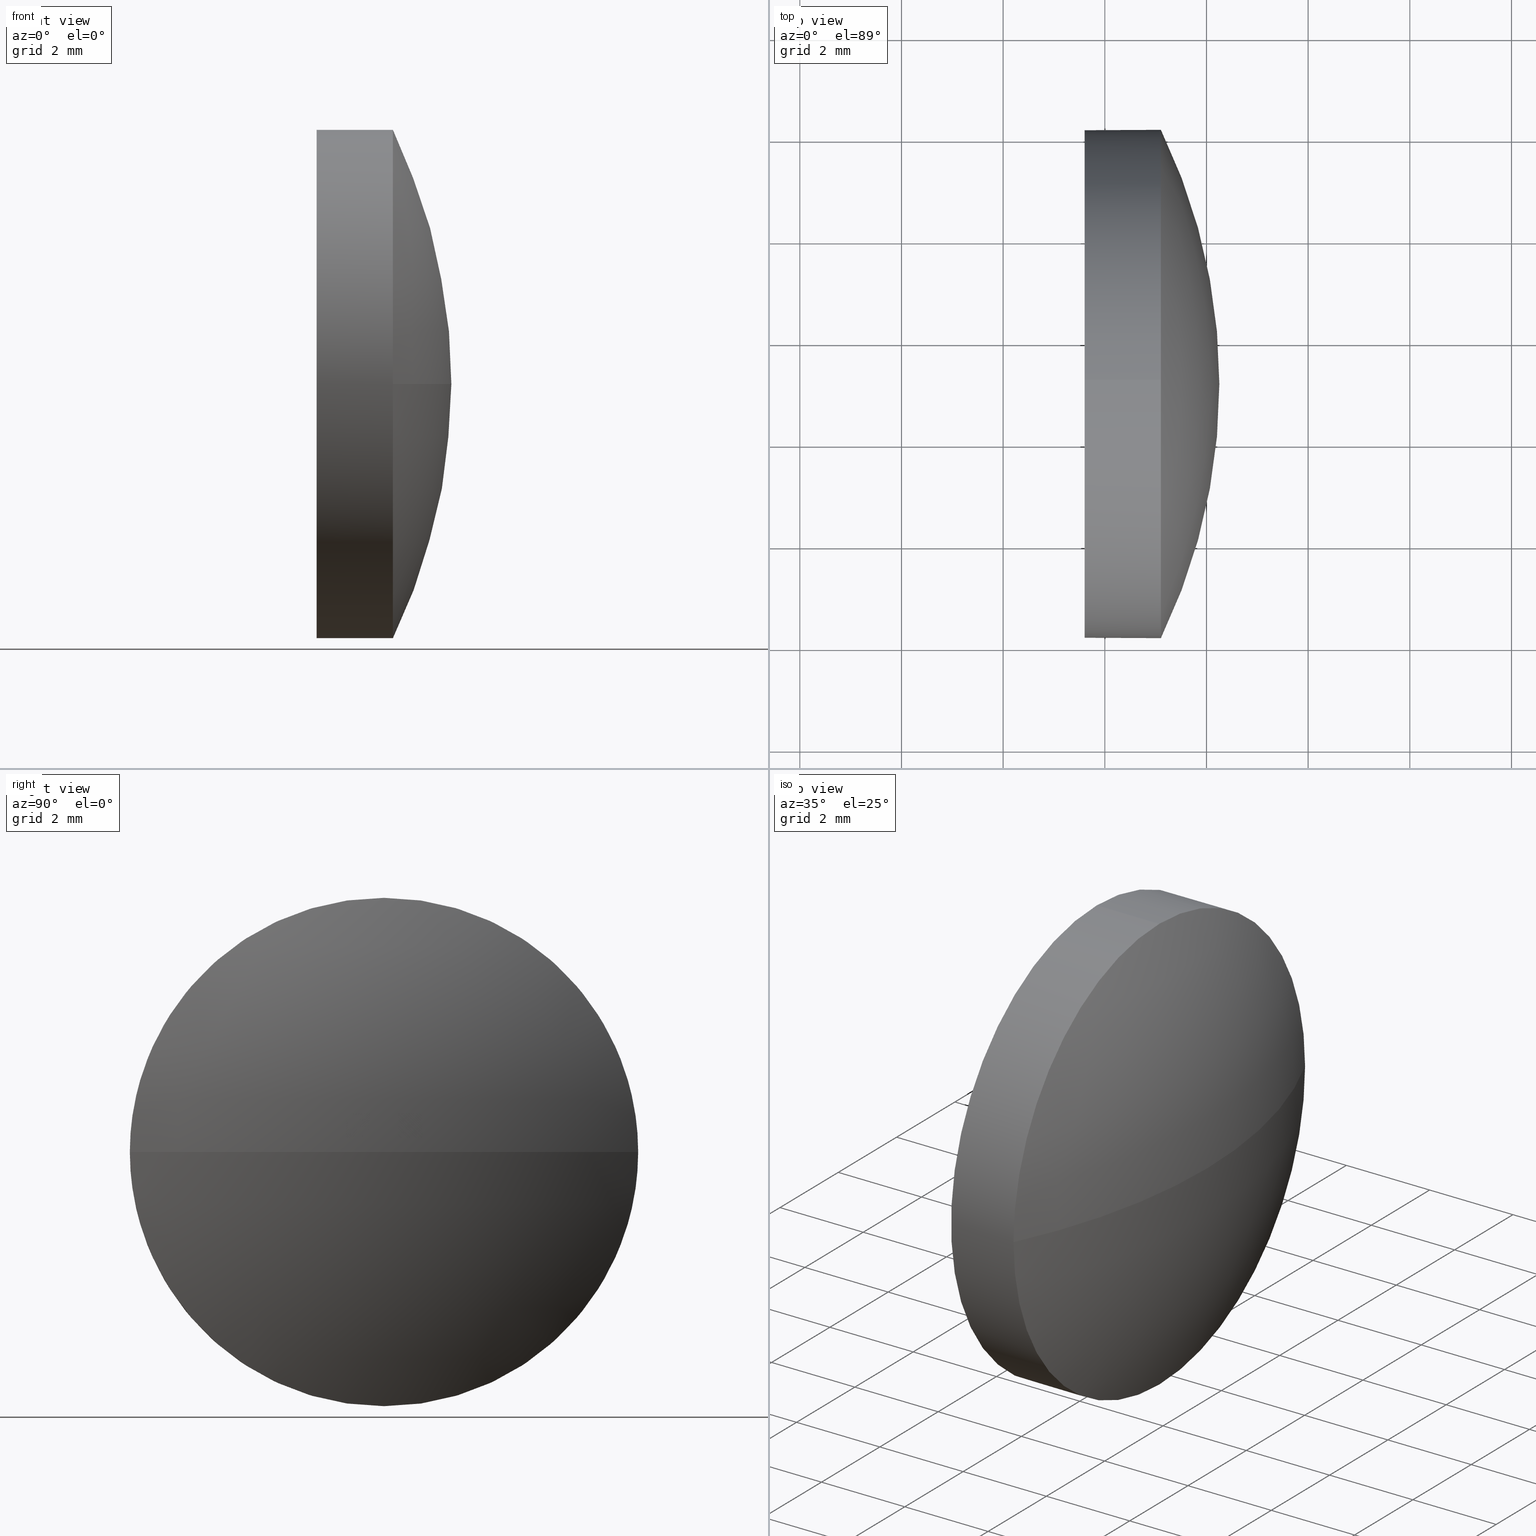
[diagram: canonical four-view strip — front | top / right | iso, engineering-drawing reading convention]
A machine part, canonical four-view strip (front | top / right | iso — engineering-drawing reading convention). The complete STEP part file that produces these views, byte-faithful:
ISO-10303-21;
HEADER;
FILE_DESCRIPTION (( 'STEP AP214' ),
    '1' );
FILE_NAME ('100360.STEP',
    '2019-06-04T01:48:17',
    ( '' ),
    ( '' ),
    'SwSTEP 2.0',
    'SolidWorks 2016',
    '' );
FILE_SCHEMA (( 'AUTOMOTIVE_DESIGN' ));
ENDSEC;

DATA;
#1 = AXIS2_PLACEMENT_3D ( 'NONE', #26, #68, #40 ) ;
#2 = CYLINDRICAL_SURFACE ( 'NONE', #10, 5.000000000000004400 ) ;
#3 = CARTESIAN_POINT ( 'NONE',  ( 486.4612023547895200, 77.15318376785940300, 0.0000000000000000000 ) ) ;
#4 = VERTEX_POINT ( 'NONE', #175 ) ;
#5 = DIRECTION ( 'NONE',  ( -1.000000000000000000, -0.0000000000000000000, -0.0000000000000000000 ) ) ;
#6 = FILL_AREA_STYLE ('',( #125 ) ) ;
#7 = SURFACE_STYLE_USAGE ( .BOTH. , #101 ) ;
#8 = ORIENTED_EDGE ( 'NONE', *, *, #31, .F. ) ;
#9 =( NAMED_UNIT ( * ) SI_UNIT ( $, .STERADIAN. ) SOLID_ANGLE_UNIT ( ) );
#10 = AXIS2_PLACEMENT_3D ( 'NONE', #3, #98, #62 ) ;
#11 = APPLICATION_PROTOCOL_DEFINITION ( 'draft international standard', 'automotive_design', 1998, #177 ) ;
#12 = FACE_OUTER_BOUND ( 'NONE', #78, .T. ) ;
#13 = EDGE_LOOP ( 'NONE', ( #176, #135, #122, #21 ) ) ;
#14 = AXIS2_PLACEMENT_3D ( 'NONE', #152, #150, #165 ) ;
#15 = PRESENTATION_STYLE_ASSIGNMENT (( #61 ) ) ;
#16 = AXIS2_PLACEMENT_3D ( 'NONE', #66, #20, #162 ) ;
#17 = PRESENTATION_LAYER_ASSIGNMENT (  '', '', ( #71 ) ) ;
#18 = FACE_OUTER_BOUND ( 'NONE', #91, .T. ) ;
#19 = DIRECTION ( 'NONE',  ( 0.0000000000000000000, 0.0000000000000000000, 1.000000000000000000 ) ) ;
#20 = DIRECTION ( 'NONE',  ( -1.000000000000000000, -0.0000000000000000000, -0.0000000000000000000 ) ) ;
#21 = ORIENTED_EDGE ( 'NONE', *, *, #53, .F. ) ;
#22 = CARTESIAN_POINT ( 'NONE',  ( 486.4612023547895200, 77.15318376785940300, 5.000000000000004400 ) ) ;
#23 = CIRCLE ( 'NONE', #185, 11.44456521739140000 ) ;
#24 =( LENGTH_UNIT ( ) NAMED_UNIT ( * ) SI_UNIT ( .MILLI., .METRE. ) );
#25 = PRODUCT_DEFINITION_FORMATION_WITH_SPECIFIED_SOURCE ( '�κ�', '', #157, .NOT_KNOWN. ) ;
#26 = CARTESIAN_POINT ( 'NONE',  ( 478.8088668298425400, 77.15318376785940300, 0.0000000000000000000 ) ) ;
#27 = ORIENTED_EDGE ( 'NONE', *, *, #31, .T. ) ;
#28 =( GEOMETRIC_REPRESENTATION_CONTEXT ( 3 ) GLOBAL_UNCERTAINTY_ASSIGNED_CONTEXT ( ( #88 ) ) GLOBAL_UNIT_ASSIGNED_CONTEXT ( ( #24, #130, #69 ) ) REPRESENTATION_CONTEXT ( 'NONE', 'WORKASPACE' ) );
#29 = SPHERICAL_SURFACE ( 'NONE', #95, 11.44456521739140300 ) ;
#30 = ORIENTED_EDGE ( 'NONE', *, *, #110, .F. ) ;
#31 = EDGE_CURVE ( 'NONE', #86, #67, #87, .T. ) ;
#32 = AXIS2_PLACEMENT_3D ( 'NONE', #48, #163, #158 ) ;
#33 = FACE_OUTER_BOUND ( 'NONE', #108, .T. ) ;
#34 =( NAMED_UNIT ( * ) PLANE_ANGLE_UNIT ( ) SI_UNIT ( $, .RADIAN. ) );
#35 =( NAMED_UNIT ( * ) PLANE_ANGLE_UNIT ( ) SI_UNIT ( $, .RADIAN. ) );
#36 = CARTESIAN_POINT ( 'NONE',  ( 487.6034320472339200, 77.15318376785940300, 0.0000000000000000000 ) ) ;
#37 = PRODUCT_DEFINITION ( 'δ֪', '', #25, #137 ) ;
#38 = CARTESIAN_POINT ( 'NONE',  ( 489.1034320472339200, 77.15318376785940300, 0.0000000000000000000 ) ) ;
#39 = CARTESIAN_POINT ( 'NONE',  ( 478.8088668298425400, 77.15318376785940300, 0.0000000000000000000 ) ) ;
#40 = DIRECTION ( 'NONE',  ( 0.0000000000000000000, 1.000000000000000000, 1.224646799147353700E-016 ) ) ;
#41 = ORIENTED_EDGE ( 'NONE', *, *, #53, .T. ) ;
#42 = CIRCLE ( 'NONE', #120, 5.000000000000004400 ) ;
#43 = EDGE_CURVE ( 'NONE', #156, #86, #42, .T. ) ;
#44 = ORIENTED_EDGE ( 'NONE', *, *, #171, .F. ) ;
#45 = STYLED_ITEM ( 'NONE', ( #15 ), #51 ) ;
#46 = ORIENTED_EDGE ( 'NONE', *, *, #63, .T. ) ;
#47 = CARTESIAN_POINT ( 'NONE',  ( 489.1034320472339200, 77.15318376785940300, 0.0000000000000000000 ) ) ;
#48 = CARTESIAN_POINT ( 'NONE',  ( 486.4612023547895200, 77.15318376785940300, 0.0000000000000000000 ) ) ;
#49 = LINE ( 'NONE', #22, #105 ) ;
#50 = CLOSED_SHELL ( 'NONE', ( #75, #144, #118, #58, #117 ) ) ;
#51 = MANIFOLD_SOLID_BREP ( '��ת1', #50 ) ;
#52 = FILL_AREA_STYLE ('',( #84 ) ) ;
#53 = EDGE_CURVE ( 'NONE', #67, #154, #168, .T. ) ;
#54 = CARTESIAN_POINT ( 'NONE',  ( 478.8088668298425400, 77.15318376785940300, 0.0000000000000000000 ) ) ;
#55 = COLOUR_RGB ( '',1.000000000000000000, 1.000000000000000000, 1.000000000000000000 ) ;
#56 = ORIENTED_EDGE ( 'NONE', *, *, #110, .T. ) ;
#57 = AXIS2_PLACEMENT_3D ( 'NONE', #164, #179, #166 ) ;
#58 = ADVANCED_FACE ( 'NONE', ( #33 ), #90, .T. ) ;
#59 = ORIENTED_EDGE ( 'NONE', *, *, #183, .F. ) ;
#60 = AXIS2_PLACEMENT_3D ( 'NONE', #106, #141, #142 ) ;
#61 = SURFACE_STYLE_USAGE ( .BOTH. , #113 ) ;
#62 = DIRECTION ( 'NONE',  ( 0.0000000000000000000, 0.0000000000000000000, 1.000000000000000000 ) ) ;
#63 = EDGE_CURVE ( 'NONE', #74, #67, #23, .T. ) ;
#64 =( NAMED_UNIT ( * ) SI_UNIT ( $, .STERADIAN. ) SOLID_ANGLE_UNIT ( ) );
#65 = VECTOR ( 'NONE', #115, 1000.000000000000000 ) ;
#66 = CARTESIAN_POINT ( 'NONE',  ( 489.1034320472339200, 77.15318376785940300, 0.0000000000000000000 ) ) ;
#67 = VERTEX_POINT ( 'NONE', #124 ) ;
#68 = DIRECTION ( 'NONE',  ( 0.0000000000000000000, 1.224646799147353200E-016, -1.000000000000000000 ) ) ;
#69 =( NAMED_UNIT ( * ) SI_UNIT ( $, .STERADIAN. ) SOLID_ANGLE_UNIT ( ) );
#70 = CARTESIAN_POINT ( 'NONE',  ( 489.1034320472339200, 77.15318376785940300, -5.000000000000004400 ) ) ;
#71 = STYLED_ITEM ( 'NONE', ( #109 ), #151 ) ;
#72 = CARTESIAN_POINT ( 'NONE',  ( 486.4612023547895200, 77.15318376785940300, -5.000000000000004400 ) ) ;
#73 = DIRECTION ( 'NONE',  ( -1.000000000000000000, -0.0000000000000000000, -0.0000000000000000000 ) ) ;
#74 = VERTEX_POINT ( 'NONE', #112 ) ;
#75 = ADVANCED_FACE ( 'NONE', ( #186 ), #2, .T. ) ;
#76 = ORIENTED_EDGE ( 'NONE', *, *, #94, .T. ) ;
#77 = AXIS2_PLACEMENT_3D ( 'NONE', #54, #114, #129 ) ;
#78 = EDGE_LOOP ( 'NONE', ( #44, #46, #8, #121 ) ) ;
#79 = ORIENTED_EDGE ( 'NONE', *, *, #159, .F. ) ;
#80 =( LENGTH_UNIT ( ) NAMED_UNIT ( * ) SI_UNIT ( .MILLI., .METRE. ) );
#81 = DIRECTION ( 'NONE',  ( 0.0000000000000000000, 0.0000000000000000000, 1.000000000000000000 ) ) ;
#82 = PRODUCT_CONTEXT ( 'NONE', #177, 'mechanical' ) ;
#83 = ORIENTED_EDGE ( 'NONE', *, *, #146, .F. ) ;
#84 = FILL_AREA_STYLE_COLOUR ( '', #55 ) ;
#85 = MECHANICAL_DESIGN_GEOMETRIC_PRESENTATION_REPRESENTATION (  '', ( #71 ), #28 ) ;
#86 = VERTEX_POINT ( 'NONE', #96 ) ;
#87 = CIRCLE ( 'NONE', #16, 5.000000000000004400 ) ;
#88 = UNCERTAINTY_MEASURE_WITH_UNIT (LENGTH_MEASURE( 1.000000000000000100E-005 ), #24, 'distance_accuracy_value', 'NONE');
#89 =( GEOMETRIC_REPRESENTATION_CONTEXT ( 3 ) GLOBAL_UNCERTAINTY_ASSIGNED_CONTEXT ( ( #184 ) ) GLOBAL_UNIT_ASSIGNED_CONTEXT ( ( #80, #34, #64 ) ) REPRESENTATION_CONTEXT ( 'NONE', 'WORKASPACE' ) );
#90 = CYLINDRICAL_SURFACE ( 'NONE', #32, 5.000000000000004400 ) ;
#91 = EDGE_LOOP ( 'NONE', ( #119, #56 ) ) ;
#92 = DIRECTION ( 'NONE',  ( -0.0000000000000000000, 0.0000000000000000000, 1.000000000000000000 ) ) ;
#93 = CIRCLE ( 'NONE', #14, 5.000000000000004400 ) ;
#94 = EDGE_CURVE ( 'NONE', #154, #156, #134, .T. ) ;
#95 = AXIS2_PLACEMENT_3D ( 'NONE', #39, #149, #131 ) ;
#96 = CARTESIAN_POINT ( 'NONE',  ( 489.1034320472339200, 77.15318376785940300, 5.000000000000004400 ) ) ;
#97 = CARTESIAN_POINT ( 'NONE',  ( 489.1034320472339200, 77.15318376785940300, 0.0000000000000000000 ) ) ;
#98 = DIRECTION ( 'NONE',  ( -1.000000000000000000, -0.0000000000000000000, -0.0000000000000000000 ) ) ;
#99 = LINE ( 'NONE', #72, #65 ) ;
#100 = EDGE_LOOP ( 'NONE', ( #41, #170, #59, #79, #27 ) ) ;
#101 = SURFACE_SIDE_STYLE ('',( #145 ) ) ;
#102 = DIRECTION ( 'NONE',  ( 0.0000000000000000000, 0.0000000000000000000, 1.000000000000000000 ) ) ;
#103 = APPLICATION_CONTEXT ( 'automotive_design' ) ;
#104 = PRODUCT_RELATED_PRODUCT_CATEGORY ( 'part', '', ( #157 ) ) ;
#105 = VECTOR ( 'NONE', #73, 1000.000000000000000 ) ;
#106 = CARTESIAN_POINT ( 'NONE',  ( 487.6034320472339200, 77.15318376785940300, 0.0000000000000000000 ) ) ;
#107 = PRODUCT_DEFINITION_SHAPE ( 'NONE', 'NONE',  #37 ) ;
#108 = EDGE_LOOP ( 'NONE', ( #83, #76, #133, #155, #30 ) ) ;
#109 = PRESENTATION_STYLE_ASSIGNMENT (( #7 ) ) ;
#110 = EDGE_CURVE ( 'NONE', #148, #4, #138, .T. ) ;
#111 = SHAPE_DEFINITION_REPRESENTATION ( #107, #151 ) ;
#112 = CARTESIAN_POINT ( 'NONE',  ( 490.2534320472339000, 77.15318376785940300, 0.0000000000000000000 ) ) ;
#113 = SURFACE_SIDE_STYLE ('',( #127 ) ) ;
#114 = DIRECTION ( 'NONE',  ( -0.0000000000000000000, 0.0000000000000000000, -1.000000000000000000 ) ) ;
#115 = DIRECTION ( 'NONE',  ( -1.000000000000000000, -0.0000000000000000000, -0.0000000000000000000 ) ) ;
#116 = COLOUR_RGB ( '',1.000000000000000000, 1.000000000000000000, 1.000000000000000000 ) ;
#117 = ADVANCED_FACE ( 'NONE', ( #18 ), #161, .F. ) ;
#118 = ADVANCED_FACE ( 'NONE', ( #12 ), #173, .T. ) ;
#119 = ORIENTED_EDGE ( 'NONE', *, *, #183, .T. ) ;
#120 = AXIS2_PLACEMENT_3D ( 'NONE', #97, #5, #19 ) ;
#121 = ORIENTED_EDGE ( 'NONE', *, *, #43, .F. ) ;
#122 = ORIENTED_EDGE ( 'NONE', *, *, #94, .F. ) ;
#123 = UNCERTAINTY_MEASURE_WITH_UNIT (LENGTH_MEASURE( 1.000000000000000100E-005 ), #140, 'distance_accuracy_value', 'NONE');
#124 = CARTESIAN_POINT ( 'NONE',  ( 489.1034320472339200, 82.15318376785940300, 0.0000000000000000000 ) ) ;
#125 = FILL_AREA_STYLE_COLOUR ( '', #116 ) ;
#126 = CARTESIAN_POINT ( 'NONE',  ( 487.6034320472339200, 77.15318376785940300, -5.000000000000004400 ) ) ;
#127 = SURFACE_STYLE_FILL_AREA ( #6 ) ;
#128 = DIRECTION ( 'NONE',  ( -1.000000000000000000, -0.0000000000000000000, -0.0000000000000000000 ) ) ;
#129 = DIRECTION ( 'NONE',  ( 0.0000000000000000000, 1.000000000000000000, 0.0000000000000000000 ) ) ;
#130 =( NAMED_UNIT ( * ) PLANE_ANGLE_UNIT ( ) SI_UNIT ( $, .RADIAN. ) );
#131 = DIRECTION ( 'NONE',  ( 0.0000000000000000000, 1.000000000000000000, 0.0000000000000000000 ) ) ;
#132 = CIRCLE ( 'NONE', #1, 11.44456521739140000 ) ;
#133 = ORIENTED_EDGE ( 'NONE', *, *, #43, .T. ) ;
#134 = CIRCLE ( 'NONE', #147, 5.000000000000004400 ) ;
#135 = ORIENTED_EDGE ( 'NONE', *, *, #171, .T. ) ;
#136 = DIRECTION ( 'NONE',  ( 1.000000000000000000, 0.0000000000000000000, 0.0000000000000000000 ) ) ;
#137 = PRODUCT_DEFINITION_CONTEXT ( 'detailed design', #103, 'design' ) ;
#138 = CIRCLE ( 'NONE', #181, 5.000000000000004400 ) ;
#139 = DIRECTION ( 'NONE',  ( -1.000000000000000000, -0.0000000000000000000, -0.0000000000000000000 ) ) ;
#140 =( LENGTH_UNIT ( ) NAMED_UNIT ( * ) SI_UNIT ( .MILLI., .METRE. ) );
#141 = DIRECTION ( 'NONE',  ( 1.000000000000000000, 0.0000000000000000000, 0.0000000000000000000 ) ) ;
#142 = DIRECTION ( 'NONE',  ( 0.0000000000000000000, 0.0000000000000000000, -1.000000000000000000 ) ) ;
#143 = FACE_OUTER_BOUND ( 'NONE', #13, .T. ) ;
#144 = ADVANCED_FACE ( 'NONE', ( #143 ), #29, .T. ) ;
#145 = SURFACE_STYLE_FILL_AREA ( #52 ) ;
#146 = EDGE_CURVE ( 'NONE', #154, #148, #99, .T. ) ;
#147 = AXIS2_PLACEMENT_3D ( 'NONE', #38, #128, #182 ) ;
#148 = VERTEX_POINT ( 'NONE', #126 ) ;
#149 = DIRECTION ( 'NONE',  ( -0.0000000000000000000, 0.0000000000000000000, -1.000000000000000000 ) ) ;
#150 = DIRECTION ( 'NONE',  ( -1.000000000000000000, -0.0000000000000000000, -0.0000000000000000000 ) ) ;
#151 = ADVANCED_BREP_SHAPE_REPRESENTATION ( '100360', ( #51, #57 ), #153 ) ;
#152 = CARTESIAN_POINT ( 'NONE',  ( 487.6034320472339200, 77.15318376785940300, 0.0000000000000000000 ) ) ;
#153 =( GEOMETRIC_REPRESENTATION_CONTEXT ( 3 ) GLOBAL_UNCERTAINTY_ASSIGNED_CONTEXT ( ( #123 ) ) GLOBAL_UNIT_ASSIGNED_CONTEXT ( ( #140, #35, #9 ) ) REPRESENTATION_CONTEXT ( 'NONE', 'WORKASPACE' ) );
#154 = VERTEX_POINT ( 'NONE', #70 ) ;
#155 = ORIENTED_EDGE ( 'NONE', *, *, #159, .T. ) ;
#156 = VERTEX_POINT ( 'NONE', #180 ) ;
#157 = PRODUCT ( '100360', '100360', '', ( #82 ) ) ;
#158 = DIRECTION ( 'NONE',  ( 0.0000000000000000000, 0.0000000000000000000, 1.000000000000000000 ) ) ;
#159 = EDGE_CURVE ( 'NONE', #86, #4, #49, .T. ) ;
#160 = PRESENTATION_LAYER_ASSIGNMENT (  '', '', ( #45 ) ) ;
#161 = PLANE ( 'NONE',  #60 ) ;
#162 = DIRECTION ( 'NONE',  ( 0.0000000000000000000, 0.0000000000000000000, 1.000000000000000000 ) ) ;
#163 = DIRECTION ( 'NONE',  ( -1.000000000000000000, -0.0000000000000000000, -0.0000000000000000000 ) ) ;
#164 = CARTESIAN_POINT ( 'NONE',  ( 0.0000000000000000000, 0.0000000000000000000, 0.0000000000000000000 ) ) ;
#165 = DIRECTION ( 'NONE',  ( 0.0000000000000000000, 0.0000000000000000000, 1.000000000000000000 ) ) ;
#166 = DIRECTION ( 'NONE',  ( 1.000000000000000000, 0.0000000000000000000, 0.0000000000000000000 ) ) ;
#167 = DIRECTION ( 'NONE',  ( -1.000000000000000000, -0.0000000000000000000, -0.0000000000000000000 ) ) ;
#168 = CIRCLE ( 'NONE', #169, 5.000000000000004400 ) ;
#169 = AXIS2_PLACEMENT_3D ( 'NONE', #47, #139, #81 ) ;
#170 = ORIENTED_EDGE ( 'NONE', *, *, #146, .T. ) ;
#171 = EDGE_CURVE ( 'NONE', #74, #156, #132, .T. ) ;
#172 = MECHANICAL_DESIGN_GEOMETRIC_PRESENTATION_REPRESENTATION (  '', ( #45 ), #89 ) ;
#173 = SPHERICAL_SURFACE ( 'NONE', #77, 11.44456521739140300 ) ;
#174 = CARTESIAN_POINT ( 'NONE',  ( 478.8088668298425400, 77.15318376785940300, 0.0000000000000000000 ) ) ;
#175 = CARTESIAN_POINT ( 'NONE',  ( 487.6034320472339200, 77.15318376785940300, 5.000000000000004400 ) ) ;
#176 = ORIENTED_EDGE ( 'NONE', *, *, #63, .F. ) ;
#177 = APPLICATION_CONTEXT ( 'automotive_design' ) ;
#178 = APPLICATION_PROTOCOL_DEFINITION ( 'draft international standard', 'automotive_design', 1998, #103 ) ;
#179 = DIRECTION ( 'NONE',  ( 0.0000000000000000000, 0.0000000000000000000, 1.000000000000000000 ) ) ;
#180 = CARTESIAN_POINT ( 'NONE',  ( 489.1034320472339200, 72.15318376785940300, -6.123233995736768300E-016 ) ) ;
#181 = AXIS2_PLACEMENT_3D ( 'NONE', #36, #167, #102 ) ;
#182 = DIRECTION ( 'NONE',  ( 0.0000000000000000000, 0.0000000000000000000, 1.000000000000000000 ) ) ;
#183 = EDGE_CURVE ( 'NONE', #4, #148, #93, .T. ) ;
#184 = UNCERTAINTY_MEASURE_WITH_UNIT (LENGTH_MEASURE( 1.000000000000000100E-005 ), #80, 'distance_accuracy_value', 'NONE');
#185 = AXIS2_PLACEMENT_3D ( 'NONE', #174, #92, #136 ) ;
#186 = FACE_OUTER_BOUND ( 'NONE', #100, .T. ) ;
ENDSEC;
END-ISO-10303-21;
